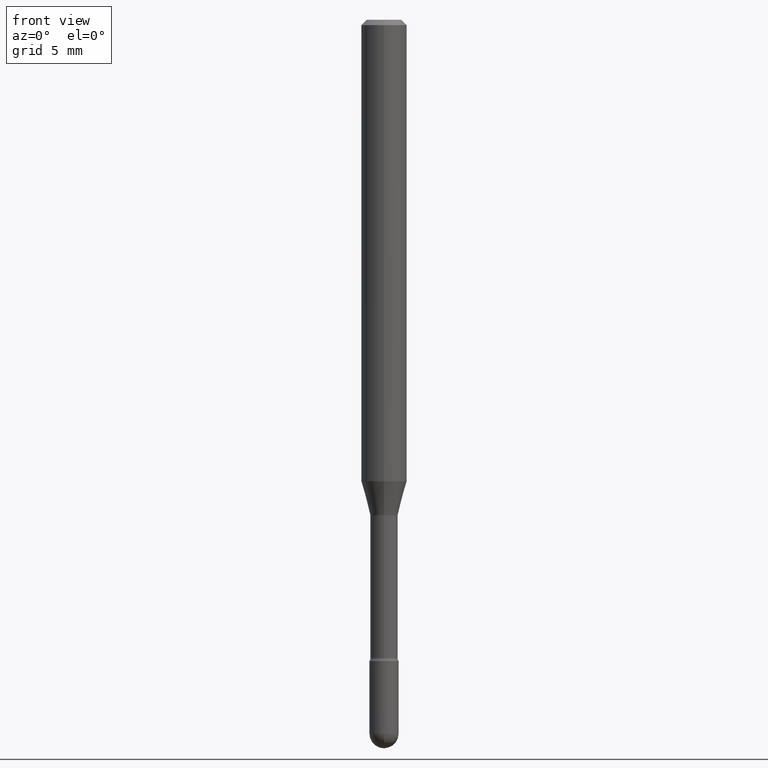
[diagram: clean part render]
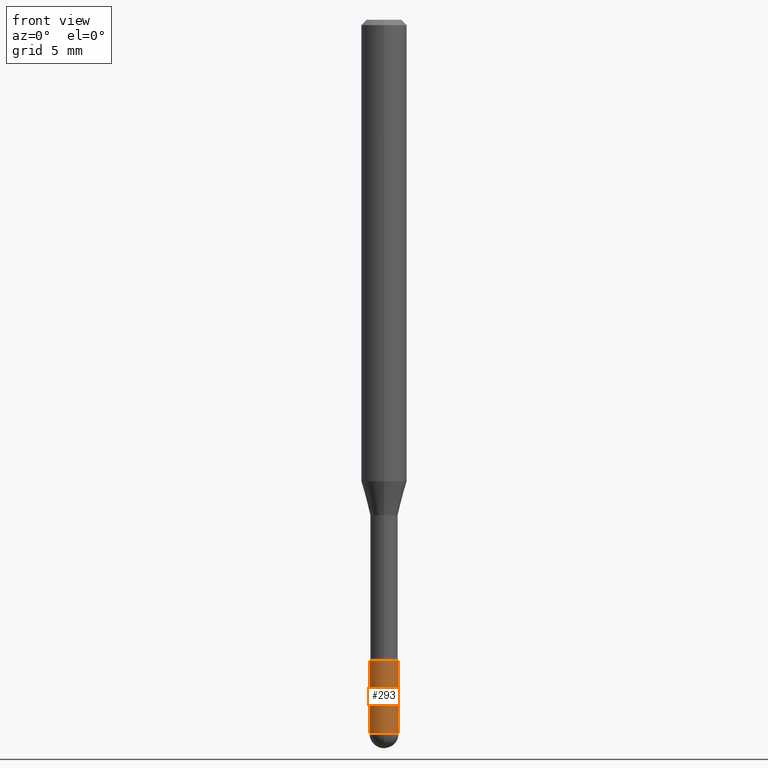
[diagram: same view with one face highlighted and labeled with its STEP entity id]
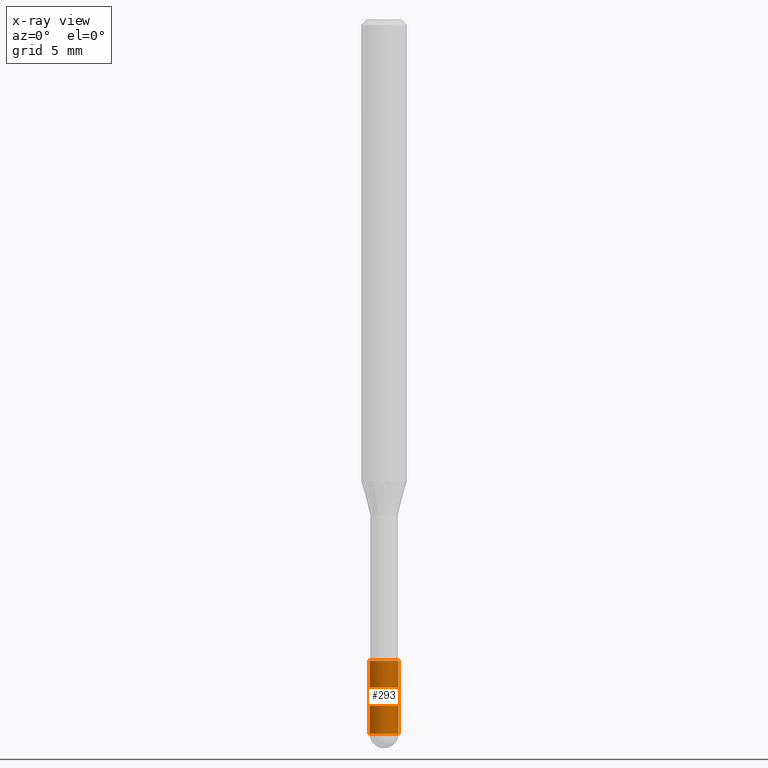
[diagram: x-ray of the same camera — body ghosted, the highlighted face saturated]
A machine part, front view. The second image highlights one B-rep face of the part: STEP entity #293.
The next image is the same camera in x-ray: the body ghosted, the highlighted face saturated — about 0% of this face is hidden behind the body in this view.
In plain terms, the highlighted cylindrical surface (edge-blend (fillet) strip) has radius 1.016 mm, axis along (-0, 0, 1).
Its self-contained STEP definition (entity closure, byte-faithful):
#2 = DIRECTION ( 'NONE',  ( -2.445468806185136597E-29, 3.491481338843145583E-15, 1.000000000000000000 ) ) ;
#22 = VERTEX_POINT ( 'NONE', #463 ) ;
#24 = CARTESIAN_POINT ( 'NONE',  ( -2.842170943039922556E-16, -0.04000000000000686340, -1.959999999999999520 ) ) ;
#27 = CARTESIAN_POINT ( 'NONE',  ( -0.04000000000000000083, 2.842170943040400803E-16, -1.967574036101962509E-30 ) ) ;
#57 = FACE_OUTER_BOUND ( 'NONE', #320, .T. ) ;
#64 = VERTEX_POINT ( 'NONE', #79 ) ;
#70 = VERTEX_POINT ( 'NONE', #435 ) ;
#74 = AXIS2_PLACEMENT_3D ( 'NONE', #210, #386, #553 ) ;
#79 = CARTESIAN_POINT ( 'NONE',  ( -0.04000000000000000083, -6.209938195944210907E-15, -1.760000000000000009 ) ) ;
#89 = DIRECTION ( 'NONE',  ( 1.000000000000000000, -6.982962677686265922E-15, 4.876176775795935793E-29 ) ) ;
#94 = VERTEX_POINT ( 'NONE', #342 ) ;
#138 = CARTESIAN_POINT ( 'NONE',  ( 4.304025098885840590E-29, -6.145007156363937109E-15, -1.760000000000000009 ) ) ;
#140 = CARTESIAN_POINT ( 'NONE',  ( 4.793118860122867012E-29, -6.843303424132564569E-15, -1.959999999999999964 ) ) ;
#143 = LINE ( 'NONE', #27, #355 ) ;
#146 = EDGE_CURVE ( 'NONE', #401, #70, #420, .T. ) ;
#152 = ORIENTED_EDGE ( 'NONE', *, *, #253, .F. ) ;
#210 = CARTESIAN_POINT ( 'NONE',  ( 4.793118860122867012E-29, -6.843303424132564569E-15, -1.959999999999999964 ) ) ;
#211 = CIRCLE ( 'NONE', #522, 0.03999999999999999389 ) ;
#212 = EDGE_CURVE ( 'NONE', #94, #401, #211, .T. ) ;
#222 = AXIS2_PLACEMENT_3D ( 'NONE', #267, #353, #89 ) ;
#224 = VECTOR ( 'NONE', #503, 39.37007874015748143 ) ;
#253 = EDGE_CURVE ( 'NONE', #64, #22, #430, .T. ) ;
#267 = CARTESIAN_POINT ( 'NONE',  ( 0.000000000000000000, 0.000000000000000000, 0.000000000000000000 ) ) ;
#285 = ORIENTED_EDGE ( 'NONE', *, *, #212, .T. ) ;
#293 = ADVANCED_FACE ( 'NONE', ( #57 ), #532, .T. ) ;
#319 = DIRECTION ( 'NONE',  ( 1.000000000000000000, -6.982962677686260400E-15, 0.000000000000000000 ) ) ;
#320 = EDGE_LOOP ( 'NONE', ( #360, #285, #367, #444, #152 ) ) ;
#342 = CARTESIAN_POINT ( 'NONE',  ( -0.03999999999999999389, -6.209938195944210907E-15, -1.959999999999999964 ) ) ;
#353 = DIRECTION ( 'NONE',  ( -2.445468806185136597E-29, 3.491481338843145583E-15, 1.000000000000000000 ) ) ;
#355 = VECTOR ( 'NONE', #491, 39.37007874015748143 ) ;
#360 = ORIENTED_EDGE ( 'NONE', *, *, #437, .F. ) ;
#367 = ORIENTED_EDGE ( 'NONE', *, *, #146, .T. ) ;
#386 = DIRECTION ( 'NONE',  ( -2.445468806185136597E-29, 3.491481338843145583E-15, 1.000000000000000000 ) ) ;
#401 = VERTEX_POINT ( 'NONE', #24 ) ;
#420 = CIRCLE ( 'NONE', #74, 0.03999999999999999389 ) ;
#430 = CIRCLE ( 'NONE', #496, 0.04000000000000000083 ) ;
#435 = CARTESIAN_POINT ( 'NONE',  ( 0.03999999999999999389, -6.773473797355701271E-15, -1.959999999999999964 ) ) ;
#437 = EDGE_CURVE ( 'NONE', #94, #64, #143, .T. ) ;
#444 = ORIENTED_EDGE ( 'NONE', *, *, #525, .T. ) ;
#463 = CARTESIAN_POINT ( 'NONE',  ( 0.04000000000000000083, -6.424325663471387146E-15, -1.760000000000000009 ) ) ;
#464 = CARTESIAN_POINT ( 'NONE',  ( 0.04000000000000000083, -2.793185071074506290E-16, 1.950470710318374387E-30 ) ) ;
#491 = DIRECTION ( 'NONE',  ( -2.445468806185136877E-29, 3.491481338843145188E-15, 1.000000000000000000 ) ) ;
#496 = AXIS2_PLACEMENT_3D ( 'NONE', #138, #520, #564 ) ;
#503 = DIRECTION ( 'NONE',  ( -2.445468806185136877E-29, 3.491481338843145188E-15, 1.000000000000000000 ) ) ;
#520 = DIRECTION ( 'NONE',  ( -2.445468806185136597E-29, 3.491481338843145583E-15, 1.000000000000000000 ) ) ;
#522 = AXIS2_PLACEMENT_3D ( 'NONE', #140, #2, #319 ) ;
#525 = EDGE_CURVE ( 'NONE', #70, #22, #548, .T. ) ;
#532 = CYLINDRICAL_SURFACE ( 'NONE', #222, 0.04000000000000000083 ) ;
#548 = LINE ( 'NONE', #464, #224 ) ;
#553 = DIRECTION ( 'NONE',  ( 1.000000000000000000, -6.982962677686260400E-15, 0.000000000000000000 ) ) ;
#564 = DIRECTION ( 'NONE',  ( 1.000000000000000000, -6.982962677686259611E-15, 0.000000000000000000 ) ) ;